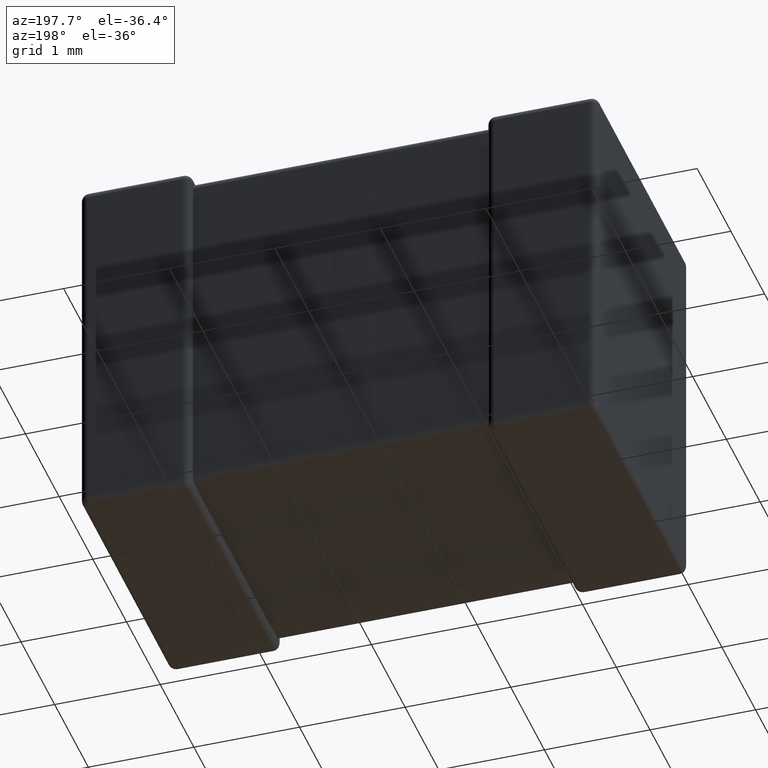
[diagram: clean part render]
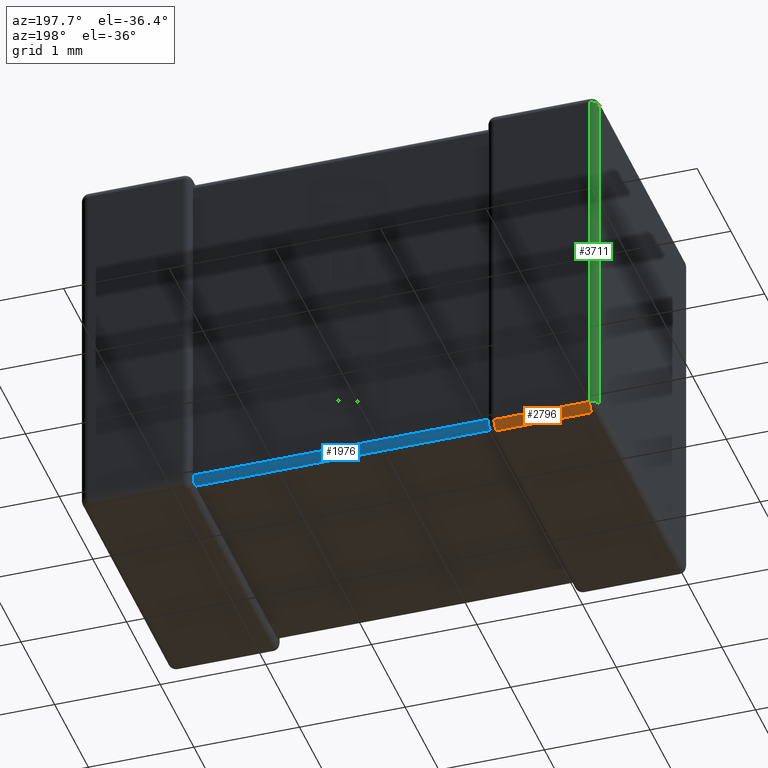
[diagram: same view with three faces highlighted in distinct colors, each labeled with its STEP entity id]
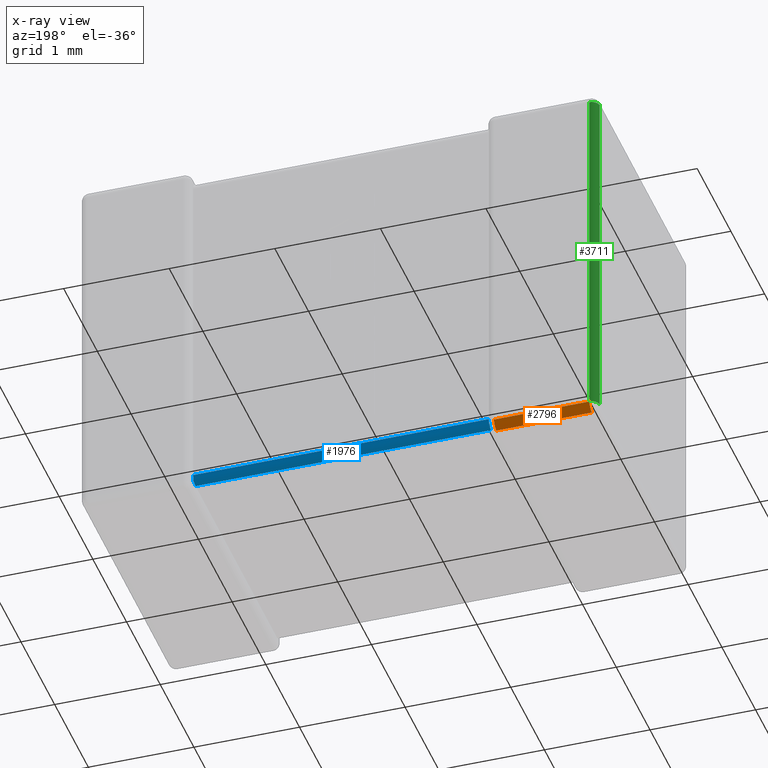
[diagram: x-ray of the same camera — body ghosted, the three highlighted faces saturated]
A machine part, auxiliary view with three faces highlighted in distinct colors.
The next image is the same camera in x-ray (body ghosted, the three faces saturated) — at least one of them is partly hidden behind the body in this view.
Their STEP definitions:

[orange] entity #2796 — the highlighted cylindrical surface (edge-blend (fillet) strip) has radius 0.0728 mm, axis along (-1, 0, 0).
#26 = CYLINDRICAL_SURFACE ( 'NONE', #4053, 0.07280000000000003135 ) ;
#335 = CARTESIAN_POINT ( 'NONE',  ( 4.900000000000000355, 2.700000000000000178, -3.427200000000000024 ) ) ;
#446 = ORIENTED_EDGE ( 'NONE', *, *, #3251, .F. ) ;
#593 = ORIENTED_EDGE ( 'NONE', *, *, #4043, .T. ) ;
#802 = CARTESIAN_POINT ( 'NONE',  ( 4.900000000000000355, 2.627200000000000202, -3.500000000000000000 ) ) ;
#827 = VERTEX_POINT ( 'NONE', #3521 ) ;
#1119 = DIRECTION ( 'NONE',  ( -1.000000000000000000, 0.000000000000000000, 0.000000000000000000 ) ) ;
#1185 = EDGE_CURVE ( 'NONE', #827, #1707, #4253, .T. ) ;
#1227 = ORIENTED_EDGE ( 'NONE', *, *, #1185, .F. ) ;
#1262 = CARTESIAN_POINT ( 'NONE',  ( 0.07279999999999960114, 2.627200000000000202, -3.427200000000000024 ) ) ;
#1443 = VECTOR ( 'NONE', #1119, 1000.000000000000000 ) ;
#1470 = FACE_OUTER_BOUND ( 'NONE', #1668, .T. ) ;
#1537 = DIRECTION ( 'NONE',  ( -5.957154793876395536E-15, 1.000000000000000000, 0.000000000000000000 ) ) ;
#1668 = EDGE_LOOP ( 'NONE', ( #593, #1227, #1812, #446 ) ) ;
#1707 = VERTEX_POINT ( 'NONE', #2109 ) ;
#1722 = AXIS2_PLACEMENT_3D ( 'NONE', #1262, #3780, #4460 ) ;
#1812 = ORIENTED_EDGE ( 'NONE', *, *, #2855, .F. ) ;
#2109 = CARTESIAN_POINT ( 'NONE',  ( 0.07279999999999960114, 2.700000000000000178, -3.427200000000000024 ) ) ;
#2191 = DIRECTION ( 'NONE',  ( 1.000000000000000000, -0.000000000000000000, -0.000000000000000000 ) ) ;
#2196 = DIRECTION ( 'NONE',  ( 1.000000000000000000, 5.957154793876396325E-15, 0.000000000000000000 ) ) ;
#2502 = CARTESIAN_POINT ( 'NONE',  ( 0.07279999999999960114, 2.627200000000000202, -3.500000000000000000 ) ) ;
#2531 = LINE ( 'NONE', #802, #3842 ) ;
#2698 = VERTEX_POINT ( 'NONE', #3424 ) ;
#2796 = ADVANCED_FACE ( 'NONE', ( #1470 ), #26, .T. ) ;
#2855 = EDGE_CURVE ( 'NONE', #2698, #827, #3981, .T. ) ;
#3170 = AXIS2_PLACEMENT_3D ( 'NONE', #3949, #2196, #1537 ) ;
#3208 = CARTESIAN_POINT ( 'NONE',  ( 4.900000000000000355, 2.627200000000000202, -3.427200000000000024 ) ) ;
#3251 = EDGE_CURVE ( 'NONE', #3260, #2698, #2531, .T. ) ;
#3260 = VERTEX_POINT ( 'NONE', #2502 ) ;
#3267 = CIRCLE ( 'NONE', #1722, 0.07280000000000003135 ) ;
#3424 = CARTESIAN_POINT ( 'NONE',  ( 0.9772000000000000686, 2.627200000000000202, -3.500000000000000000 ) ) ;
#3521 = CARTESIAN_POINT ( 'NONE',  ( 0.9771999999999997355, 2.700000000000000178, -3.427200000000000024 ) ) ;
#3780 = DIRECTION ( 'NONE',  ( 1.000000000000000000, -0.000000000000000000, -0.000000000000000000 ) ) ;
#3842 = VECTOR ( 'NONE', #2191, 1000.000000000000000 ) ;
#3900 = DIRECTION ( 'NONE',  ( 0.000000000000000000, 0.000000000000000000, 1.000000000000000000 ) ) ;
#3949 = CARTESIAN_POINT ( 'NONE',  ( 0.9772000000000000686, 2.627200000000000202, -3.427200000000000024 ) ) ;
#3981 = CIRCLE ( 'NONE', #3170, 0.07280000000000003135 ) ;
#4043 = EDGE_CURVE ( 'NONE', #3260, #1707, #3267, .T. ) ;
#4053 = AXIS2_PLACEMENT_3D ( 'NONE', #3208, #4513, #3900 ) ;
#4253 = LINE ( 'NONE', #335, #1443 ) ;
#4460 = DIRECTION ( 'NONE',  ( 0.000000000000000000, 0.000000000000000000, 1.000000000000000000 ) ) ;
#4513 = DIRECTION ( 'NONE',  ( -1.000000000000000000, 0.000000000000000000, 0.000000000000000000 ) ) ;

[blue] entity #1976 — the highlighted cylindrical surface (edge-blend (fillet) strip) has radius 0.0728 mm, axis along (1, 0, 0).
#7 = CARTESIAN_POINT ( 'NONE',  ( 1.050000000000000044, 2.558199106259449795, -3.427200000000000024 ) ) ;
#9 = AXIS2_PLACEMENT_3D ( 'NONE', #2241, #3255, #3646 ) ;
#43 = VECTOR ( 'NONE', #2300, 1000.000000000000000 ) ;
#111 = CARTESIAN_POINT ( 'NONE',  ( 3.853192632527818517, 2.605877373670380859, -3.405877373670381125 ) ) ;
#133 = ORIENTED_EDGE ( 'NONE', *, *, #658, .F. ) ;
#226 = CARTESIAN_POINT ( 'NONE',  ( 3.853192632527818517, 2.605877373670380859, -3.405877373670381125 ) ) ;
#233 = B_SPLINE_CURVE_WITH_KNOTS ( 'NONE', 3,
 ( #4269, #3163, #2470, #1382, #350, #1790, #4196, #3567, #7, #790 ),
 .UNSPECIFIED., .F., .F.,
 ( 4, 3, 3, 4 ),
 ( 0.000000000000000000, 2.291429526389519652E-05, 4.570773099061669871E-05, 5.697602054444684508E-05 ),
 .UNSPECIFIED. ) ;
#285 = B_SPLINE_CURVE_WITH_KNOTS ( 'NONE', 3,
 ( #1971, #3383, #2338, #3749, #595, #2110, #4173, #2155, #3934, #1114 ),
 .UNSPECIFIED., .F., .F.,
 ( 4, 3, 3, 4 ),
 ( 0.000000000000000000, 2.422644186407584764E-05, 4.850291313082660528E-05, 5.704030738690930462E-05 ),
 .UNSPECIFIED. ) ;
#290 = CARTESIAN_POINT ( 'NONE',  ( 3.849999999999999645, 2.562475480621354329, -3.427200000000000024 ) ) ;
#315 = CARTESIAN_POINT ( 'NONE',  ( 3.852094387556574073, 2.601752699757767129, -3.409768954912125505 ) ) ;
#350 = CARTESIAN_POINT ( 'NONE',  ( 1.049944214848891999, 2.580704205023675701, -3.422706132417264069 ) ) ;
#456 = CARTESIAN_POINT ( 'NONE',  ( 3.850435176013914162, 2.619251902777221641, -3.387476739654533553 ) ) ;
#464 = EDGE_CURVE ( 'NONE', #2544, #2037, #2388, .T. ) ;
#487 = VERTEX_POINT ( 'NONE', #708 ) ;
#595 = CARTESIAN_POINT ( 'NONE',  ( 1.049741233250676586, 2.620516760541456769, -3.385923731670116066 ) ) ;
#658 = EDGE_CURVE ( 'NONE', #2603, #2460, #1547, .T. ) ;
#708 = CARTESIAN_POINT ( 'NONE',  ( 1.046807367472182282, 2.605877373670381303, -3.405877373670380237 ) ) ;
#721 = CARTESIAN_POINT ( 'NONE',  ( 1.049999999999999822, 2.627200000000000202, -3.354400000000000048 ) ) ;
#790 = CARTESIAN_POINT ( 'NONE',  ( 1.049999999999999378, 2.554400000000000226, -3.427200000000000024 ) ) ;
#843 = CARTESIAN_POINT ( 'NONE',  ( 3.850020027576706028, 2.625119784657448108, -3.373281067532072797 ) ) ;
#886 = CARTESIAN_POINT ( 'NONE',  ( 1.049999999999999822, 2.627200000000000202, -3.354400000000000048 ) ) ;
#907 = CARTESIAN_POINT ( 'NONE',  ( 3.850000000000000533, 2.627200000000000646, -3.358199106259449618 ) ) ;
#983 = ORIENTED_EDGE ( 'NONE', *, *, #2409, .F. ) ;
#1047 = LINE ( 'NONE', #1688, #2514 ) ;
#1114 = CARTESIAN_POINT ( 'NONE',  ( 1.046807367472182282, 2.605877373670381303, -3.405877373670380237 ) ) ;
#1229 = CARTESIAN_POINT ( 'NONE',  ( 3.849999999999999645, 2.554400000000000670, -3.427200000000000024 ) ) ;
#1317 = VERTEX_POINT ( 'NONE', #1871 ) ;
#1346 = CARTESIAN_POINT ( 'NONE',  ( 3.849999999999999645, 2.554400000000000670, -3.427200000000000024 ) ) ;
#1382 = CARTESIAN_POINT ( 'NONE',  ( 1.049564823986086415, 2.587476739654534175, -3.419251902777221463 ) ) ;
#1398 = ORIENTED_EDGE ( 'NONE', *, *, #2411, .F. ) ;
#1547 = LINE ( 'NONE', #886, #43 ) ;
#1610 = CARTESIAN_POINT ( 'NONE',  ( 3.850000000000000977, 2.627200000000000646, -3.354400000000000048 ) ) ;
#1688 = CARTESIAN_POINT ( 'NONE',  ( 1.049999999999998934, 2.554400000000000226, -3.427200000000000024 ) ) ;
#1710 = CARTESIAN_POINT ( 'NONE',  ( 3.849964757895330436, 2.570661401835344417, -3.425818475274031716 ) ) ;
#1735 = CARTESIAN_POINT ( 'NONE',  ( 3.853192632527818517, 2.605877373670380859, -3.405877373670381125 ) ) ;
#1790 = CARTESIAN_POINT ( 'NONE',  ( 1.049979972423294550, 2.573281067532073418, -3.425119784657447042 ) ) ;
#1829 = ORIENTED_EDGE ( 'NONE', *, *, #2215, .F. ) ;
#1867 = CARTESIAN_POINT ( 'NONE',  ( 3.850055785151108356, 2.622706132417264691, -3.380704205023675080 ) ) ;
#1871 = CARTESIAN_POINT ( 'NONE',  ( 1.049999999999999378, 2.554400000000000226, -3.427200000000000024 ) ) ;
#1971 = CARTESIAN_POINT ( 'NONE',  ( 1.049999999999999822, 2.627200000000000202, -3.354400000000000048 ) ) ;
#1976 = ADVANCED_FACE ( 'NONE', ( #4286 ), #2885, .T. ) ;
#2037 = VERTEX_POINT ( 'NONE', #226 ) ;
#2110 = CARTESIAN_POINT ( 'NONE',  ( 1.049388845205681875, 2.616502303313009925, -3.393223985694740374 ) ) ;
#2155 = CARTESIAN_POINT ( 'NONE',  ( 1.047905612443426504, 2.609768954912126127, -3.401752699757766063 ) ) ;
#2215 = EDGE_CURVE ( 'NONE', #2037, #2603, #3003, .T. ) ;
#2241 = CARTESIAN_POINT ( 'NONE',  ( 1.049999999999998934, 2.554400000000000226, -3.354400000000000048 ) ) ;
#2252 = CARTESIAN_POINT ( 'NONE',  ( 3.850815866597121495, 2.615785839608291585, -3.394272475691364477 ) ) ;
#2300 = DIRECTION ( 'NONE',  ( -1.000000000000000000, -1.548860246407863090E-16, -0.000000000000000000 ) ) ;
#2338 = CARTESIAN_POINT ( 'NONE',  ( 1.050035242104670141, 2.625818475274031893, -3.370661401835343796 ) ) ;
#2388 = B_SPLINE_CURVE_WITH_KNOTS ( 'NONE', 3,
 ( #1346, #290, #1710, #2414, #2458, #2436, #3478, #315, #4211, #1735 ),
 .UNSPECIFIED., .F., .F.,
 ( 4, 3, 3, 4 ),
 ( 0.000000000000000000, 2.422644186407641346E-05, 4.850291313082750653E-05, 5.704030738691025329E-05 ),
 .UNSPECIFIED. ) ;
#2409 = EDGE_CURVE ( 'NONE', #2460, #487, #285, .T. ) ;
#2411 = EDGE_CURVE ( 'NONE', #487, #1317, #233, .T. ) ;
#2414 = CARTESIAN_POINT ( 'NONE',  ( 3.850111683549548136, 2.578288477569294912, -3.423169038377901874 ) ) ;
#2436 = CARTESIAN_POINT ( 'NONE',  ( 3.850611154794318480, 2.593223985694741440, -3.416502303313009303 ) ) ;
#2458 = CARTESIAN_POINT ( 'NONE',  ( 3.850258766749323769, 2.585923731670116688, -3.420516760541457035 ) ) ;
#2460 = VERTEX_POINT ( 'NONE', #721 ) ;
#2470 = CARTESIAN_POINT ( 'NONE',  ( 1.049184133402879082, 2.594272475691365099, -3.415785839608290519 ) ) ;
#2514 = VECTOR ( 'NONE', #3524, 1000.000000000000000 ) ;
#2544 = VERTEX_POINT ( 'NONE', #1229 ) ;
#2603 = VERTEX_POINT ( 'NONE', #1610 ) ;
#2817 = ORIENTED_EDGE ( 'NONE', *, *, #464, .F. ) ;
#2885 = CYLINDRICAL_SURFACE ( 'NONE', #9, 0.07280000000000003135 ) ;
#2926 = CARTESIAN_POINT ( 'NONE',  ( 3.850000000000000977, 2.627200000000000646, -3.354400000000000048 ) ) ;
#2993 = CARTESIAN_POINT ( 'NONE',  ( 3.851575672170317155, 2.611155914505484343, -3.400598832835277641 ) ) ;
#3003 = B_SPLINE_CURVE_WITH_KNOTS ( 'NONE', 3,
 ( #111, #2993, #2252, #456, #1867, #843, #3339, #4320, #907, #2926 ),
 .UNSPECIFIED., .F., .F.,
 ( 4, 3, 3, 4 ),
 ( 0.000000000000000000, 2.291429526389496951E-05, 4.570773099061646832E-05, 5.697602054444616745E-05 ),
 .UNSPECIFIED. ) ;
#3163 = CARTESIAN_POINT ( 'NONE',  ( 1.048424327829683866, 2.600598832835278262, -3.411155914505483722 ) ) ;
#3255 = DIRECTION ( 'NONE',  ( 1.000000000000000000, 1.548860246407863090E-16, 0.000000000000000000 ) ) ;
#3339 = CARTESIAN_POINT ( 'NONE',  ( 3.850005466920572772, 2.626307837599945127, -3.365762345343281225 ) ) ;
#3383 = CARTESIAN_POINT ( 'NONE',  ( 1.049999999999999822, 2.627200000000000202, -3.362475480621353707 ) ) ;
#3428 = EDGE_CURVE ( 'NONE', #1317, #2544, #1047, .T. ) ;
#3478 = CARTESIAN_POINT ( 'NONE',  ( 3.851704486567831154, 2.599510736034676750, -3.411538966515065496 ) ) ;
#3524 = DIRECTION ( 'NONE',  ( 1.000000000000000000, 1.548860246407863090E-16, 0.000000000000000000 ) ) ;
#3567 = CARTESIAN_POINT ( 'NONE',  ( 1.050001800200625501, 2.562009803912833839, -3.426900786478270788 ) ) ;
#3582 = EDGE_LOOP ( 'NONE', ( #983, #133, #1829, #2817, #3988, #1398 ) ) ;
#3646 = DIRECTION ( 'NONE',  ( 0.000000000000000000, 1.000000000000000000, 0.000000000000000000 ) ) ;
#3749 = CARTESIAN_POINT ( 'NONE',  ( 1.049888316450452663, 2.623169038377902051, -3.378288477569294290 ) ) ;
#3934 = CARTESIAN_POINT ( 'NONE',  ( 1.047417677218303478, 2.607869719926278584, -3.403885027414822240 ) ) ;
#3988 = ORIENTED_EDGE ( 'NONE', *, *, #3428, .F. ) ;
#4173 = CARTESIAN_POINT ( 'NONE',  ( 1.048295513432168979, 2.611538966515066118, -3.399510736034675684 ) ) ;
#4196 = CARTESIAN_POINT ( 'NONE',  ( 1.049994533079428027, 2.565762345343281847, -3.426307837599944506 ) ) ;
#4211 = CARTESIAN_POINT ( 'NONE',  ( 3.852582322781696433, 2.603885027414823305, -3.407869719926277963 ) ) ;
#4269 = CARTESIAN_POINT ( 'NONE',  ( 1.046807367472182282, 2.605877373670381303, -3.405877373670380237 ) ) ;
#4286 = FACE_OUTER_BOUND ( 'NONE', #3582, .T. ) ;
#4320 = CARTESIAN_POINT ( 'NONE',  ( 3.849998199799375076, 2.626900786478270966, -3.362009803912833661 ) ) ;

[green] entity #3711 — the highlighted cylindrical surface (edge-blend (fillet) strip) has radius 0.0728 mm, axis along (0, 0, -1).
#119 = FACE_OUTER_BOUND ( 'NONE', #788, .T. ) ;
#298 = AXIS2_PLACEMENT_3D ( 'NONE', #345, #2839, #3558 ) ;
#345 = CARTESIAN_POINT ( 'NONE',  ( 0.07280000000000000360, 2.627200000000000202, -3.427200000000000024 ) ) ;
#356 = CARTESIAN_POINT ( 'NONE',  ( 0.07279999999999960114, 2.627200000000000202, -0.07280000000000000360 ) ) ;
#450 = CIRCLE ( 'NONE', #298, 0.07280000000000000360 ) ;
#451 = ORIENTED_EDGE ( 'NONE', *, *, #4174, .F. ) ;
#462 = AXIS2_PLACEMENT_3D ( 'NONE', #3950, #2243, #1197 ) ;
#528 = EDGE_CURVE ( 'NONE', #550, #3592, #1103, .T. ) ;
#550 = VERTEX_POINT ( 'NONE', #3613 ) ;
#629 = CIRCLE ( 'NONE', #3271, 0.07280000000000000360 ) ;
#788 = EDGE_LOOP ( 'NONE', ( #2089, #1399, #451, #3724 ) ) ;
#949 = CARTESIAN_POINT ( 'NONE',  ( 0.07279999999999960114, 2.700000000000000178, -0.07280000000000000360 ) ) ;
#1031 = CARTESIAN_POINT ( 'NONE',  ( 0.07279999999999960114, 2.700000000000000178, 0.000000000000000000 ) ) ;
#1050 = DIRECTION ( 'NONE',  ( 1.000000000000000000, 0.000000000000000000, 0.000000000000000000 ) ) ;
#1103 = LINE ( 'NONE', #1151, #1457 ) ;
#1151 = CARTESIAN_POINT ( 'NONE',  ( 0.000000000000000000, 2.627200000000000202, -3.500000000000000000 ) ) ;
#1197 = DIRECTION ( 'NONE',  ( -1.000000000000000000, 0.000000000000000000, 0.000000000000000000 ) ) ;
#1399 = ORIENTED_EDGE ( 'NONE', *, *, #528, .F. ) ;
#1457 = VECTOR ( 'NONE', #3275, 1000.000000000000000 ) ;
#1619 = LINE ( 'NONE', #1031, #1715 ) ;
#1707 = VERTEX_POINT ( 'NONE', #2109 ) ;
#1715 = VECTOR ( 'NONE', #3080, 1000.000000000000000 ) ;
#1742 = CARTESIAN_POINT ( 'NONE',  ( 0.000000000000000000, 2.627200000000000202, -3.427200000000000024 ) ) ;
#2089 = ORIENTED_EDGE ( 'NONE', *, *, #2712, .F. ) ;
#2109 = CARTESIAN_POINT ( 'NONE',  ( 0.07279999999999960114, 2.700000000000000178, -3.427200000000000024 ) ) ;
#2243 = DIRECTION ( 'NONE',  ( 0.000000000000000000, 0.000000000000000000, -1.000000000000000000 ) ) ;
#2699 = VERTEX_POINT ( 'NONE', #949 ) ;
#2712 = EDGE_CURVE ( 'NONE', #3592, #1707, #450, .T. ) ;
#2830 = DIRECTION ( 'NONE',  ( 0.000000000000000000, -0.000000000000000000, 1.000000000000000000 ) ) ;
#2839 = DIRECTION ( 'NONE',  ( 0.000000000000000000, 0.000000000000000000, -1.000000000000000000 ) ) ;
#3080 = DIRECTION ( 'NONE',  ( 0.000000000000000000, 0.000000000000000000, 1.000000000000000000 ) ) ;
#3271 = AXIS2_PLACEMENT_3D ( 'NONE', #356, #2830, #1050 ) ;
#3275 = DIRECTION ( 'NONE',  ( -0.000000000000000000, 0.000000000000000000, -1.000000000000000000 ) ) ;
#3313 = EDGE_CURVE ( 'NONE', #1707, #2699, #1619, .T. ) ;
#3558 = DIRECTION ( 'NONE',  ( -1.000000000000000000, 0.000000000000000000, 0.000000000000000000 ) ) ;
#3592 = VERTEX_POINT ( 'NONE', #1742 ) ;
#3613 = CARTESIAN_POINT ( 'NONE',  ( 0.000000000000000000, 2.627200000000000202, -0.07280000000000000360 ) ) ;
#3711 = ADVANCED_FACE ( 'NONE', ( #119 ), #4330, .T. ) ;
#3724 = ORIENTED_EDGE ( 'NONE', *, *, #3313, .F. ) ;
#3950 = CARTESIAN_POINT ( 'NONE',  ( 0.07279999999999960114, 2.627200000000000202, 0.000000000000000000 ) ) ;
#4174 = EDGE_CURVE ( 'NONE', #2699, #550, #629, .T. ) ;
#4330 = CYLINDRICAL_SURFACE ( 'NONE', #462, 0.07280000000000000360 ) ;